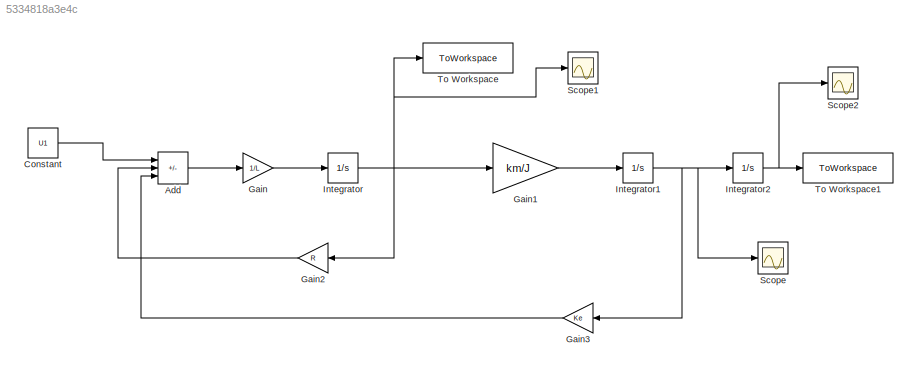
MODEL slx_5334818a3e4c
KIND model
CONFIG AbsTol = auto
CONFIG EnableMultiTasking = off
CONFIG FixedStep = auto
CONFIG MaxStep = auto
CONFIG MinStep = auto
CONFIG RelTol = 1e-3
CONFIG SampleTimeConstraint = Unconstrained
CONFIG SolverName = VariableStepAuto
CONFIG StartTime = 0.0
CONFIG StopTime = 1.0
WORKSPACE source: mxarray member
WORKSPACE J = 0.0023
WORKSPACE Ke = 0.3303
WORKSPACE L = 0.0047
WORKSPACE Param: Simulink.Parameter (value not decoded)
WORKSPACE R = 1.4996
WORKSPACE U = -2.08
WORKSPACE Var = 0
WORKSPACE ke = 0.13
WORKSPACE km = 0.3303
BLOCK [Sum] Add
  IconShape = rectangular
  Inputs = +--
BLOCK [Constant] Constant
  Value = U1
BLOCK [Gain] Gain
  Gain = 1/L
BLOCK [Gain] Gain1
  Gain = km/J
BLOCK [Gain] Gain2
  Gain = R
BLOCK [Gain] Gain3
  Gain = Ke
BLOCK [Integrator] Integrator
BLOCK [Integrator] Integrator1
BLOCK [Integrator] Integrator2
BLOCK [Scope] Scope
  Floating = off
  NumInputPorts = 1
  ScopeSpecificationString = Simulink.scopes.TimeScopeBlockCfg('CurrentConfiguration', extmgr.ConfigurationSet(extmgr.Configuration('Core','General UI',true),extmgr.Configuration('Core','Source UI',true),extmgr.Configuration('Sources','WiredSimulink',true),extmgr.Configuration('Visuals','Time Domain',true,'SerializedDisplays',{struct('MinYLimReal','-1.3209','MaxYLimReal','11.88814','YLabelReal','','MinYLimMag','0.00000','MaxY...<+1367ch>
BLOCK [Scope] Scope1
  Floating = off
  NumInputPorts = 1
  ScopeSpecificationString = Simulink.scopes.TimeScopeBlockCfg('CurrentConfiguration', extmgr.ConfigurationSet(extmgr.Configuration('Core','General UI',true),extmgr.Configuration('Core','Source UI',true),extmgr.Configuration('Sources','WiredSimulink',true,'DataLoggingVariableName','ScopeData1'),extmgr.Configuration('Visuals','Time Domain',true,'SerializedDisplays',{struct('MinYLimReal','-0.2429','MaxYLimReal','2.16476','YLabe...<+1367ch>
BLOCK [Scope] Scope2
  Floating = off
  NumInputPorts = 1
  ScopeSpecificationString = Simulink.scopes.TimeScopeBlockCfg('CurrentConfiguration', extmgr.ConfigurationSet(extmgr.Configuration('Core','General UI',true),extmgr.Configuration('Core','Source UI',true),extmgr.Configuration('Sources','WiredSimulink',true,'DataLoggingVariableName','ScopeData2'),extmgr.Configuration('Visuals','Time Domain',true,'SerializedDisplays',{struct('MinYLimReal','-1.27901','MaxYLimReal','11.51112','YLa...<+1374ch>
BLOCK [ToWorkspace] To Workspace
  FixptAsFi = on
  MaxDataPoints = inf
  SampleTime = -1
  SaveFormat = Structure With Time
  VariableName = I
BLOCK [ToWorkspace] To Workspace1
  FixptAsFi = on
  MaxDataPoints = inf
  SampleTime = -1
  SaveFormat = Structure With Time
  VariableName = theta
LINE Add:1 -> Gain:1
LINE Constant:1 -> Add:1
LINE Gain1:1 -> Integrator1:1
LINE Gain2:1 -> Add:2
LINE Gain3:1 -> Add:3
LINE Gain:1 -> Integrator:1
NET Integrator1:1 -> Gain3:1, Integrator2:1, Scope:1
NET Integrator2:1 -> Scope2:1, To Workspace1:1
NET Integrator:1 -> Gain1:1, Gain2:1, Scope1:1, To Workspace:1
note: NET lines group one-source signal fan-out (src -> all destinations, sorted); 1:1 wires keep LINE
